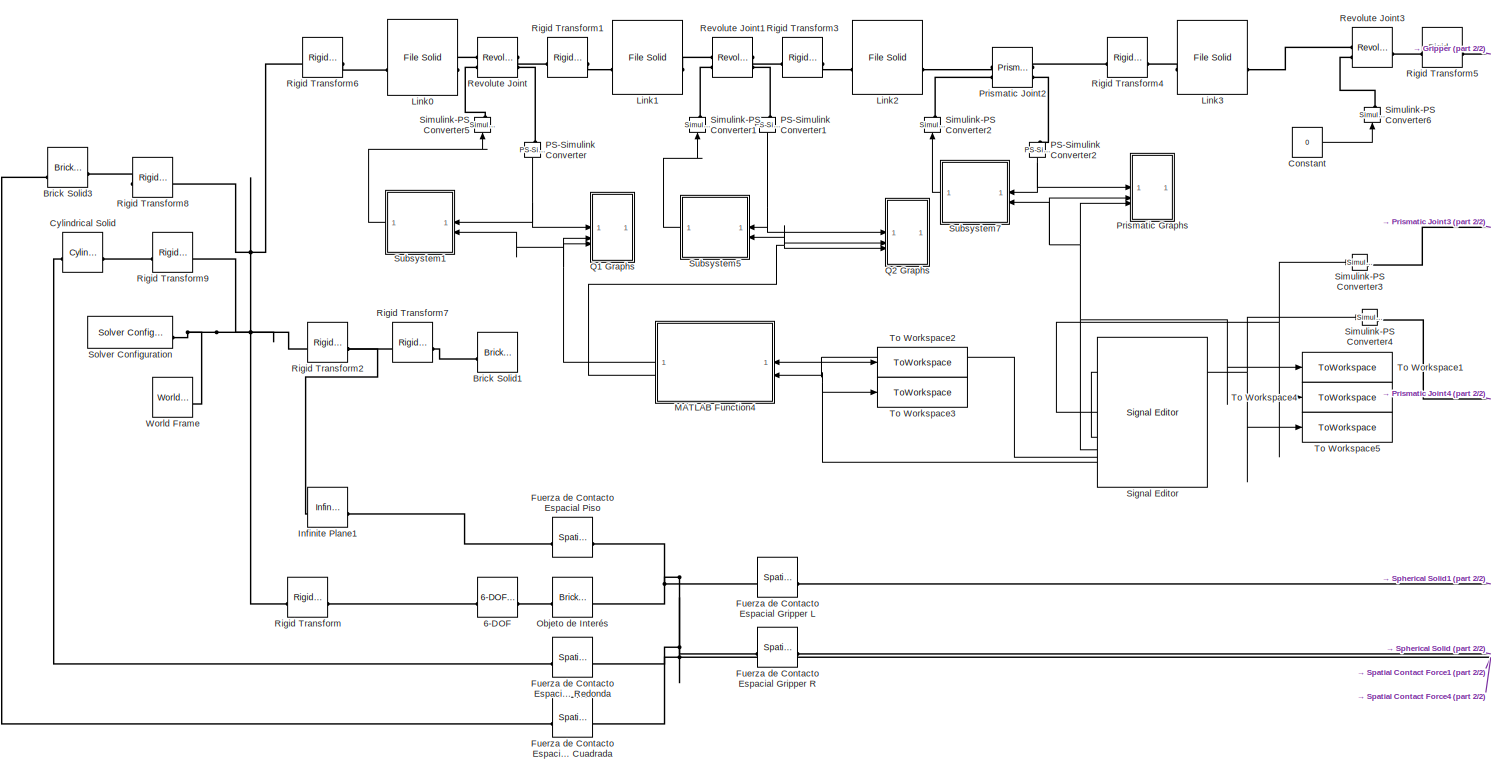
[diagram: root canvas - part 1/2, center side, full height]
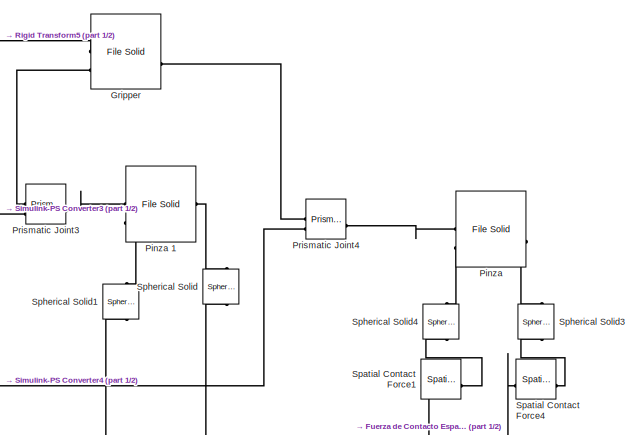
[diagram: root canvas - part 2/2, top right region]
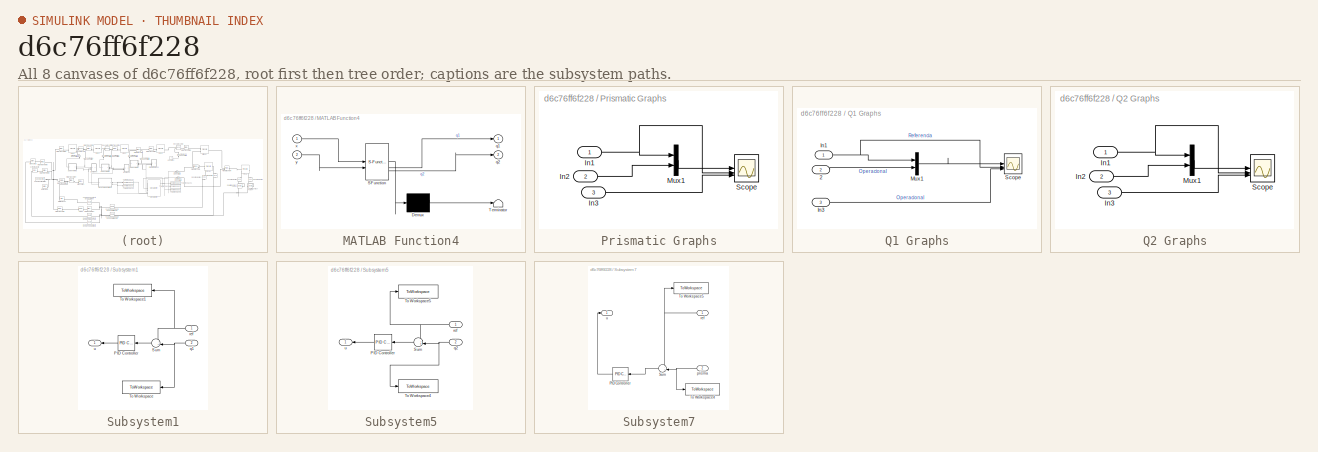
[diagram: thumbnail index - all 8 canvases of the model, root first then tree order]
MODEL slx_d6c76ff6f228
KIND model
CONFIG AbsTol = auto
CONFIG EnableMultiTasking = off
CONFIG FixedStep = auto
CONFIG MaxStep = auto
CONFIG MinStep = auto
CONFIG RelTol = 1e-3
CONFIG SampleTimeConstraint = Unconstrained
CONFIG SolverName = VariableStepAuto
CONFIG StartTime = 0.0
CONFIG StopTime = 35
BLOCK [Reference] 6-DOF  REF=sm_lib/Joints/6-DOF Joint
  SourceBlock = sm_lib/Joints/6-DOF Joint
  SourceType = 6-DOF Joint
BLOCK [Reference] Brick Solid1  REF=sm_lib/Body Elements/Brick Solid
  SourceBlock = sm_lib/Body Elements/Brick Solid
  SourceType = Brick Solid
BLOCK [Reference] Brick Solid3  REF=sm_lib/Body Elements/Brick Solid
  NameLocation = top
  SourceBlock = sm_lib/Body Elements/Brick Solid
  SourceType = Brick Solid
BLOCK [Constant] Constant
  Value = 0
BLOCK [Reference] Cylindrical Solid  REF=sm_lib/Body Elements/Cylindrical Solid
  SourceBlock = sm_lib/Body Elements/Cylindrical Solid
  SourceType = Cylindrical Solid
BLOCK [Reference] Fuerza de Contacto Espacial Base Cuadrada  REF=sm_lib/Forces and
Torques/Spatial
Contact Force
  SourceBlock = sm_lib/Forces and\nTorques/Spatial\nContact Force
  SourceType = Spatial\nContact Force
BLOCK [Reference] Fuerza de Contacto Espacial Base Redonda   REF=sm_lib/Forces and
Torques/Spatial
Contact Force
  SourceBlock = sm_lib/Forces and\nTorques/Spatial\nContact Force
  SourceType = Spatial\nContact Force
BLOCK [Reference] Fuerza de Contacto Espacial Gripper L  REF=sm_lib/Forces and
Torques/Spatial
Contact Force
  NameLocation = top
  SourceBlock = sm_lib/Forces and\nTorques/Spatial\nContact Force
  SourceType = Spatial\nContact Force
BLOCK [Reference] Fuerza de Contacto Espacial Gripper R  REF=sm_lib/Forces and
Torques/Spatial
Contact Force
  NameLocation = top
  SourceBlock = sm_lib/Forces and\nTorques/Spatial\nContact Force
  SourceType = Spatial\nContact Force
BLOCK [Reference] Fuerza de Contacto Espacial Piso  REF=sm_lib/Forces and
Torques/Spatial
Contact Force
  SourceBlock = sm_lib/Forces and\nTorques/Spatial\nContact Force
  SourceType = Spatial\nContact Force
BLOCK [Reference] Gripper  REF=sm_lib/Body Elements/File Solid
  SourceBlock = sm_lib/Body Elements/File Solid
  SourceType = File Solid
BLOCK [Reference] Infinite Plane1  REF=sm_lib/Curves and Surfaces/Infinite Plane
  SourceBlock = sm_lib/Curves and Surfaces/Infinite Plane
  SourceType = Infinite Plane
BLOCK [Reference] Link0  REF=sm_lib/Body Elements/File Solid
  SourceBlock = sm_lib/Body Elements/File Solid
  SourceType = File Solid
BLOCK [Reference] Link1  REF=sm_lib/Body Elements/File Solid
  SourceBlock = sm_lib/Body Elements/File Solid
  SourceType = File Solid
BLOCK [Reference] Link2  REF=sm_lib/Body Elements/File Solid
  SourceBlock = sm_lib/Body Elements/File Solid
  SourceType = File Solid
BLOCK [Reference] Link3  REF=sm_lib/Body Elements/File Solid
  SourceBlock = sm_lib/Body Elements/File Solid
  SourceType = File Solid
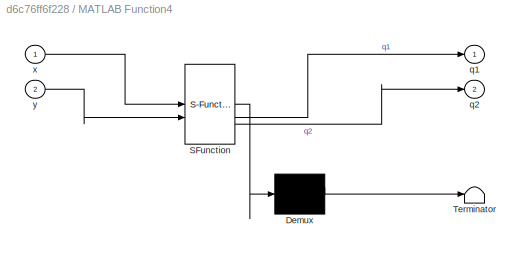
BLOCK [SubSystem] MATLAB Function4
  ErrorFcn = Stateflow.Translate.translate
  NameLocation = top
  PermitHierarchicalResolution = ExplicitOnly
  SFBlockType = MATLAB Function
  TreatAsAtomicUnit = on
BLOCK [Demux] MATLAB Function4/ Demux 
  Outputs = 1
BLOCK [S-Function] MATLAB Function4/ SFunction 
  EnableBusSupport = off
  FunctionName = sf_sfun
  PortCounts = [2 3]
  SFcnIsStateOwnerBlock = off
  SFunctionDeploymentMode = off
  Tag = Stateflow S-Function 4
BLOCK [Terminator] MATLAB Function4/ Terminator 
BLOCK [Outport] MATLAB Function4/q1
BLOCK [Outport] MATLAB Function4/q2
  Port = 2
BLOCK [Inport] MATLAB Function4/x
BLOCK [Inport] MATLAB Function4/y
  Port = 2
BLOCK [Reference] Objeto de Interés  REF=sm_lib/Body Elements/Brick Solid
  SourceBlock = sm_lib/Body Elements/Brick Solid
  SourceType = Brick Solid
BLOCK [Reference] PS-Simulink Converter  REF=nesl_utility/PS-Simulink
Converter
  NameLocation = left
  SourceBlock = nesl_utility/PS-Simulink\nConverter
  SourceType = PS-Simulink\nConverter
BLOCK [Reference] PS-Simulink Converter1  REF=nesl_utility/PS-Simulink
Converter
  NameLocation = left
  SourceBlock = nesl_utility/PS-Simulink\nConverter
  SourceType = PS-Simulink\nConverter
BLOCK [Reference] PS-Simulink Converter2  REF=nesl_utility/PS-Simulink
Converter
  NameLocation = left
  SourceBlock = nesl_utility/PS-Simulink\nConverter
  SourceType = PS-Simulink\nConverter
BLOCK [Reference] Pinza   REF=sm_lib/Body Elements/File Solid
  SourceBlock = sm_lib/Body Elements/File Solid
  SourceType = File Solid
BLOCK [Reference] Pinza 1  REF=sm_lib/Body Elements/File Solid
  SourceBlock = sm_lib/Body Elements/File Solid
  SourceType = File Solid
BLOCK [SubSystem] Prismatic Graphs
BLOCK [Inport] Prismatic Graphs/In1
BLOCK [Inport] Prismatic Graphs/In2
  Port = 2
BLOCK [Inport] Prismatic Graphs/In3
  Port = 3
BLOCK [Mux] Prismatic Graphs/Mux1
  DisplayOption = bar
  Inputs = 2
BLOCK [Scope] Prismatic Graphs/Scope
  ActiveDisplayYMaximum = 0.11755437641233973
  ActiveDisplayYMinimum = -0.057989387711057591
  DataLoggingVariableName = ScopeData1
  DisplayFullPath = on
  Floating = off
  GraphicalSettings = {"Style":{"BackgroundColor":[0.12941176470588237,0.12941176470588237,0.12941176470588237],"AxesColor":[0.07058823529411765,0.07058823529411765,0.07058823529411765],"LabelsColor":[0.8509803921568627,0.8509803921568627,0.8509803921568627],"PreserveColors":false,"Visible":[true,true,true,true],"LineStyle":["-","-","-","-"],"LineWidth":[1.5,1.5,1.5,1.5],"BarWidth":[0.9,0.9,0.9,0.9],"LineColor":["auto"...<+2889ch>
  LayoutDimensionsString = [3,1]
  MultipleDisplayCache = [{"MaxYLimMag":0.11755437641233973,"MaxYLimReal":0.11755437641233973,"MinYLimMag":0,"MinYLimReal":-0.057989387711057591,"PlotAsMagnitudePhase":false,"ShowGrid":true,"ShowLegend":false,"Title":"%<SignalLabel>","YLabel":""},{"MaxYLimMag":0.11755437641233973,"MaxYLimReal":0.11755437641233973,"MinYLimMag":0,"MinYLimReal":-0.057989387711057591,"PlotAsMagnitudePhase":false,"ShowGrid":true,"ShowLegend":f...<+230ch>
  NumInputPorts = 3
  OpenAtSimulationStart = on
  ScopeFrameLocation = window
  Visible = on
  WasSavedAsWebScope = on
  WindowPosition = [5.000000,48.000000,499.000000,233.000000,]
BLOCK [Reference] Prismatic Joint2  REF=sm_lib/Joints/Prismatic
Joint
  SourceBlock = sm_lib/Joints/Prismatic\nJoint
  SourceType = Prismatic\nJoint
BLOCK [Reference] Prismatic Joint3  REF=sm_lib/Joints/Prismatic
Joint
  SourceBlock = sm_lib/Joints/Prismatic\nJoint
  SourceType = Prismatic\nJoint
BLOCK [Reference] Prismatic Joint4  REF=sm_lib/Joints/Prismatic
Joint
  SourceBlock = sm_lib/Joints/Prismatic\nJoint
  SourceType = Prismatic\nJoint
BLOCK [SubSystem] Q1 Graphs
BLOCK [Inport] Q1 Graphs/2
  Port = 2
BLOCK [Inport] Q1 Graphs/In1
BLOCK [Inport] Q1 Graphs/In3
  Port = 3
BLOCK [Mux] Q1 Graphs/Mux1
  DisplayOption = bar
  Inputs = 2
BLOCK [Scope] Q1 Graphs/Scope
  ActiveDisplayYMaximum = 1.1953208461444214
  ActiveDisplayYMinimum = -0.61811223602463272
  AxesScaling = Auto
  DataLoggingVariableName = ScopeData5
  DisplayFullPath = on
  Floating = off
  GraphicalSettings = {"Style":{"BackgroundColor":[0.12941176470588237,0.12941176470588237,0.12941176470588237],"AxesColor":[0.07058823529411765,0.07058823529411765,0.07058823529411765],"LabelsColor":[0.8509803921568627,0.8509803921568627,0.8509803921568627],"PreserveColors":false,"Visible":[true,true,true,true],"LineStyle":["-","-","-","-"],"LineWidth":[1.5,1.5,1.5,1.5],"BarWidth":[0.9,0.9,0.9,0.9],"LineColor":["auto"...<+3002ch>
  LayoutDimensionsString = [3,1]
  MultipleDisplayCache = [{"MaxYLimMag":1.1953208461444214,"MaxYLimReal":1.1953208461444214,"MinYLimMag":0,"MinYLimReal":-0.61811223602463272,"PlotAsMagnitudePhase":false,"ShowGrid":true,"ShowLegend":false,"Title":"%<SignalLabel>","YLabel":""},{"MaxYLimMag":1.1953208461444214,"MaxYLimReal":1.1953208461444214,"MinYLimMag":0,"MinYLimReal":-0.61811223602463272,"PlotAsMagnitudePhase":false,"ShowGrid":true,"ShowLegend":false,"...<+255ch>
  NumInputPorts = 3
  OpenAtSimulationStart = on
  ScopeFrameLocation = window
  Visible = on
  WasSavedAsWebScope = on
  WindowPosition = [-5.000000,568.000000,498.000000,263.000000,]
BLOCK [SubSystem] Q2 Graphs
BLOCK [Inport] Q2 Graphs/In1
BLOCK [Inport] Q2 Graphs/In2
  Port = 2
BLOCK [Inport] Q2 Graphs/In3
  Port = 3
BLOCK [Mux] Q2 Graphs/Mux1
  DisplayOption = bar
  Inputs = 2
BLOCK [Scope] Q2 Graphs/Scope
  ActiveDisplayYMaximum = 2.1657392625071732
  ActiveDisplayYMinimum = -0.24063840487170007
  DisplayFullPath = on
  Floating = off
  GraphicalSettings = {"Style":{"BackgroundColor":[0.12941176470588237,0.12941176470588237,0.12941176470588237],"AxesColor":[0.07058823529411765,0.07058823529411765,0.07058823529411765],"LabelsColor":[0.8509803921568627,0.8509803921568627,0.8509803921568627],"PreserveColors":false,"Visible":[true,true,true,true],"LineStyle":["-","-","-","-"],"LineWidth":[1.5,1.5,1.5,1.5],"BarWidth":[0.9,0.9,0.9,0.9],"LineColor":["auto"...<+2946ch>
  LayoutDimensionsString = [3,1]
  MultipleDisplayCache = [{"MaxYLimMag":2.1657392625071732,"MaxYLimReal":2.1657392625071732,"MinYLimMag":0,"MinYLimReal":-0.24063840487170007,"PlotAsMagnitudePhase":false,"ShowGrid":true,"ShowLegend":false,"Title":"%<SignalLabel>","YLabel":""},{"MaxYLimMag":2.1654513480078244,"MaxYLimReal":2.1654513480078244,"MinYLimMag":0,"MinYLimReal":-0.24060641437177244,"PlotAsMagnitudePhase":false,"ShowGrid":true,"ShowLegend":false,"...<+255ch>
  NumInputPorts = 3
  OpenAtSimulationStart = on
  ScopeFrameLocation = window
  Visible = on
  WasSavedAsWebScope = on
  WindowPosition = [-6.000000,306.000000,503.000000,235.000000,]
BLOCK [Reference] Revolute Joint  REF=sm_lib/Joints/Revolute Joint
  SourceBlock = sm_lib/Joints/Revolute Joint
  SourceType = Revolute Joint
BLOCK [Reference] Revolute Joint1  REF=sm_lib/Joints/Revolute Joint
  SourceBlock = sm_lib/Joints/Revolute Joint
  SourceType = Revolute Joint
BLOCK [Reference] Revolute Joint3  REF=sm_lib/Joints/Revolute Joint
  SourceBlock = sm_lib/Joints/Revolute Joint
  SourceType = Revolute Joint
BLOCK [Reference] Rigid Transform  REF=sm_lib/Frames and
Transforms/Rigid
Transform
  SourceBlock = sm_lib/Frames and\nTransforms/Rigid\nTransform
  SourceType = Rigid\nTransform
BLOCK [Reference] Rigid Transform1  REF=sm_lib/Frames and
Transforms/Rigid
Transform
  SourceBlock = sm_lib/Frames and\nTransforms/Rigid\nTransform
  SourceType = Rigid\nTransform
BLOCK [Reference] Rigid Transform2  REF=sm_lib/Frames and
Transforms/Rigid
Transform
  SourceBlock = sm_lib/Frames and\nTransforms/Rigid\nTransform
  SourceType = Rigid\nTransform
BLOCK [Reference] Rigid Transform3  REF=sm_lib/Frames and
Transforms/Rigid
Transform
  SourceBlock = sm_lib/Frames and\nTransforms/Rigid\nTransform
  SourceType = Rigid\nTransform
BLOCK [Reference] Rigid Transform4  REF=sm_lib/Frames and
Transforms/Rigid
Transform
  SourceBlock = sm_lib/Frames and\nTransforms/Rigid\nTransform
  SourceType = Rigid\nTransform
BLOCK [Reference] Rigid Transform5  REF=sm_lib/Frames and
Transforms/Rigid
Transform
  SourceBlock = sm_lib/Frames and\nTransforms/Rigid\nTransform
  SourceType = Rigid\nTransform
BLOCK [Reference] Rigid Transform6  REF=sm_lib/Frames and
Transforms/Rigid
Transform
  SourceBlock = sm_lib/Frames and\nTransforms/Rigid\nTransform
  SourceType = Rigid\nTransform
BLOCK [Reference] Rigid Transform7  REF=sm_lib/Frames and
Transforms/Rigid
Transform
  SourceBlock = sm_lib/Frames and\nTransforms/Rigid\nTransform
  SourceType = Rigid\nTransform
BLOCK [Reference] Rigid Transform8  REF=sm_lib/Frames and
Transforms/Rigid
Transform
  NameLocation = top
  SourceBlock = sm_lib/Frames and\nTransforms/Rigid\nTransform
  SourceType = Rigid\nTransform
BLOCK [Reference] Rigid Transform9  REF=sm_lib/Frames and
Transforms/Rigid
Transform
  NameLocation = top
  SourceBlock = sm_lib/Frames and\nTransforms/Rigid\nTransform
  SourceType = Rigid\nTransform
BLOCK [Reference] Signal Editor  REF=SignalEditorBlockLib/Signal Editor
  LibrarySourceBlock = simulink/Sources/Signal Editor
  NameLocation = top
  SourceBlock = SignalEditorBlockLib/Signal Editor
  SourceType = SignalEditor
  UserDataPersistent = on
BLOCK [Reference] Simulink-PS Converter1  REF=nesl_utility/Simulink-PS
Converter
  NameLocation = right
  SourceBlock = nesl_utility/Simulink-PS\nConverter
  SourceType = Simulink-PS\nConverter
BLOCK [Reference] Simulink-PS Converter2  REF=nesl_utility/Simulink-PS
Converter
  NameLocation = right
  SourceBlock = nesl_utility/Simulink-PS\nConverter
  SourceType = Simulink-PS\nConverter
BLOCK [Reference] Simulink-PS Converter3  REF=nesl_utility/Simulink-PS
Converter
  SourceBlock = nesl_utility/Simulink-PS\nConverter
  SourceType = Simulink-PS\nConverter
BLOCK [Reference] Simulink-PS Converter4  REF=nesl_utility/Simulink-PS
Converter
  SourceBlock = nesl_utility/Simulink-PS\nConverter
  SourceType = Simulink-PS\nConverter
BLOCK [Reference] Simulink-PS Converter5  REF=nesl_utility/Simulink-PS
Converter
  NameLocation = right
  SourceBlock = nesl_utility/Simulink-PS\nConverter
  SourceType = Simulink-PS\nConverter
BLOCK [Reference] Simulink-PS Converter6  REF=nesl_utility/Simulink-PS
Converter
  NameLocation = right
  SourceBlock = nesl_utility/Simulink-PS\nConverter
  SourceType = Simulink-PS\nConverter
BLOCK [Reference] Solver Configuration  REF=nesl_utility/Solver
Configuration
  SourceBlock = nesl_utility/Solver\nConfiguration
  SourceType = Solver\nConfiguration
BLOCK [Reference] Spatial Contact Force1  REF=sm_lib/Forces and
Torques/Spatial
Contact Force
  NameLocation = top
  SourceBlock = sm_lib/Forces and\nTorques/Spatial\nContact Force
  SourceType = Spatial\nContact Force
BLOCK [Reference] Spatial Contact Force4  REF=sm_lib/Forces and
Torques/Spatial
Contact Force
  NameLocation = top
  SourceBlock = sm_lib/Forces and\nTorques/Spatial\nContact Force
  SourceType = Spatial\nContact Force
BLOCK [Reference] Spherical Solid  REF=sm_lib/Body Elements/Spherical Solid
  NameLocation = right
  SourceBlock = sm_lib/Body Elements/Spherical Solid
  SourceType = Spherical Solid
BLOCK [Reference] Spherical Solid1  REF=sm_lib/Body Elements/Spherical Solid
  NameLocation = right
  SourceBlock = sm_lib/Body Elements/Spherical Solid
  SourceType = Spherical Solid
BLOCK [Reference] Spherical Solid3  REF=sm_lib/Body Elements/Spherical Solid
  NameLocation = right
  SourceBlock = sm_lib/Body Elements/Spherical Solid
  SourceType = Spherical Solid
BLOCK [Reference] Spherical Solid4  REF=sm_lib/Body Elements/Spherical Solid
  NameLocation = right
  SourceBlock = sm_lib/Body Elements/Spherical Solid
  SourceType = Spherical Solid
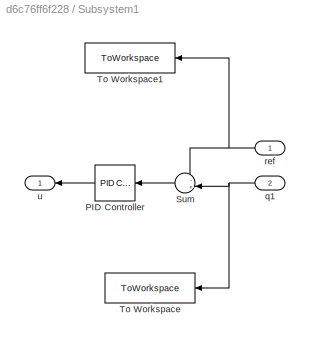
BLOCK [SubSystem] Subsystem1
  NameLocation = top
BLOCK [Reference] Subsystem1/PID Controller  REF=slpidlib/PID Controller
  LibrarySourceBlock = simulink/Continuous/PID Controller
  NameLocation = top
  SourceBlock = slpidlib/PID Controller
  SourceType = PID 1dof
BLOCK [Sum] Subsystem1/Sum
  Inputs = -+|
  NameLocation = top
BLOCK [ToWorkspace] Subsystem1/To Workspace
  FixptAsFi = on
  MaxDataPoints = inf
  NameLocation = top
  SampleTime = -1
  SaveFormat = Timeseries
  VariableName = q1
BLOCK [ToWorkspace] Subsystem1/To Workspace1
  FixptAsFi = on
  MaxDataPoints = inf
  NameLocation = top
  SampleTime = -1
  SaveFormat = Timeseries
  VariableName = q1ref
BLOCK [Inport] Subsystem1/q1
  NameLocation = top
  Port = 2
BLOCK [Inport] Subsystem1/ref
  NameLocation = top
BLOCK [Outport] Subsystem1/u
  NameLocation = top
BLOCK [SubSystem] Subsystem5
  NameLocation = top
BLOCK [Reference] Subsystem5/PID Controller  REF=slpidlib/PID Controller
  LibrarySourceBlock = simulink/Continuous/PID Controller
  NameLocation = top
  SourceBlock = slpidlib/PID Controller
  SourceType = PID 1dof
BLOCK [Sum] Subsystem5/Sum
  Inputs = -+|
  NameLocation = top
BLOCK [ToWorkspace] Subsystem5/To Workspace4
  FixptAsFi = on
  MaxDataPoints = inf
  SampleTime = -1
  SaveFormat = Timeseries
  VariableName = q2
BLOCK [ToWorkspace] Subsystem5/To Workspace5
  FixptAsFi = on
  MaxDataPoints = inf
  SampleTime = -1
  SaveFormat = Timeseries
  VariableName = q2pid
BLOCK [Inport] Subsystem5/q2
  NameLocation = top
  Port = 2
BLOCK [Inport] Subsystem5/ref
  NameLocation = top
BLOCK [Outport] Subsystem5/u
  NameLocation = top
BLOCK [SubSystem] Subsystem7
  NameLocation = top
BLOCK [Reference] Subsystem7/PID Controller  REF=slpidlib/PID Controller
  LibrarySourceBlock = simulink/Continuous/PID Controller
  NameLocation = top
  SourceBlock = slpidlib/PID Controller
  SourceType = PID 1dof
BLOCK [Sum] Subsystem7/Sum
  Inputs = -+|
  NameLocation = top
BLOCK [ToWorkspace] Subsystem7/To Workspace4
  FixptAsFi = on
  MaxDataPoints = inf
  SampleTime = -1
  SaveFormat = Timeseries
  VariableName = prisma
BLOCK [ToWorkspace] Subsystem7/To Workspace5
  FixptAsFi = on
  MaxDataPoints = inf
  SampleTime = -1
  SaveFormat = Timeseries
  VariableName = prismapid
BLOCK [Inport] Subsystem7/prisma
  NameLocation = top
  Port = 2
BLOCK [Inport] Subsystem7/ref
  NameLocation = top
BLOCK [Outport] Subsystem7/u
BLOCK [ToWorkspace] To Workspace1
  FixptAsFi = on
  MaxDataPoints = inf
  SampleTime = -1
  SaveFormat = Timeseries
  VariableName = prismaOp
BLOCK [ToWorkspace] To Workspace2
  FixptAsFi = on
  MaxDataPoints = inf
  SampleTime = -1
  SaveFormat = Timeseries
  VariableName = x
BLOCK [ToWorkspace] To Workspace3
  FixptAsFi = on
  MaxDataPoints = inf
  SampleTime = -1
  SaveFormat = Timeseries
  VariableName = y
BLOCK [ToWorkspace] To Workspace4
  FixptAsFi = on
  MaxDataPoints = inf
  SampleTime = -1
  SaveFormat = Timeseries
  VariableName = gripperL
BLOCK [ToWorkspace] To Workspace5
  FixptAsFi = on
  MaxDataPoints = inf
  SampleTime = -1
  SaveFormat = Timeseries
  VariableName = gripperR
BLOCK [Reference] World Frame  REF=sm_lib/Frames and
Transforms/World Frame
  SourceBlock = sm_lib/Frames and\nTransforms/World Frame
  SourceType = World Frame
LINE Constant:1 -> Simulink-PS Converter6:1
NET MATLAB Function4:1 -> Q1 Graphs:2, Q1 Graphs:3, Subsystem1:2
NET MATLAB Function4:2 -> Q2 Graphs:2, Q2 Graphs:3, Subsystem5:2
NET PS-Simulink Converter1:1 -> Q2 Graphs:1, Subsystem5:1
NET PS-Simulink Converter2:1 -> Prismatic Graphs:1, Subsystem7:1
NET PS-Simulink Converter:1 -> Q1 Graphs:1, Subsystem1:1
NET Prismatic Graphs/In1:1 -> Prismatic Graphs/Mux1:1, Prismatic Graphs/Scope:2
LINE Prismatic Graphs/In2:1 -> Prismatic Graphs/Mux1:2
LINE Prismatic Graphs/In3:1 -> Prismatic Graphs/Scope:3
LINE Prismatic Graphs/Mux1:1 -> Prismatic Graphs/Scope:1
LINE Q1 Graphs/2:1 -> Q1 Graphs/Mux1:2
NET Q1 Graphs/In1:1 -> Q1 Graphs/Mux1:1, Q1 Graphs/Scope:2
LINE Q1 Graphs/In3:1 -> Q1 Graphs/Scope:3
LINE Q1 Graphs/Mux1:1 -> Q1 Graphs/Scope:1
NET Q2 Graphs/In1:1 -> Q2 Graphs/Mux1:1, Q2 Graphs/Scope:2
LINE Q2 Graphs/In2:1 -> Q2 Graphs/Mux1:2
LINE Q2 Graphs/In3:1 -> Q2 Graphs/Scope:3
LINE Q2 Graphs/Mux1:1 -> Q2 Graphs/Scope:1
NET Signal Editor:1 -> Simulink-PS Converter3:1, To Workspace4:1
NET Signal Editor:2 -> Simulink-PS Converter4:1, To Workspace5:1
NET Signal Editor:3 -> Prismatic Graphs:2, Prismatic Graphs:3, Subsystem7:2, To Workspace1:1
NET Signal Editor:4 -> MATLAB Function4:1, To Workspace2:1
NET Signal Editor:5 -> MATLAB Function4:2, To Workspace3:1
LINE Subsystem1/PID Controller:1 -> Subsystem1/u:1
LINE Subsystem1/Sum:1 -> Subsystem1/PID Controller:1
NET Subsystem1/q1:1 -> Subsystem1/Sum:2, Subsystem1/To Workspace:1
NET Subsystem1/ref:1 -> Subsystem1/Sum:1, Subsystem1/To Workspace1:1
LINE Subsystem1:1 -> Simulink-PS Converter5:1
LINE Subsystem5/PID Controller:1 -> Subsystem5/u:1
LINE Subsystem5/Sum:1 -> Subsystem5/PID Controller:1
NET Subsystem5/q2:1 -> Subsystem5/Sum:2, Subsystem5/To Workspace4:1
NET Subsystem5/ref:1 -> Subsystem5/Sum:1, Subsystem5/To Workspace5:1
LINE Subsystem5:1 -> Simulink-PS Converter1:1
LINE Subsystem7/PID Controller:1 -> Subsystem7/u:1
LINE Subsystem7/Sum:1 -> Subsystem7/PID Controller:1
NET Subsystem7/prisma:1 -> Subsystem7/Sum:2, Subsystem7/To Workspace4:1
NET Subsystem7/ref:1 -> Subsystem7/Sum:1, Subsystem7/To Workspace5:1
LINE Subsystem7:1 -> Simulink-PS Converter2:1
PLINE 6-DOF:LConn1 -- Rigid Transform:RConn1
PLINE 6-DOF:RConn1 -- Objeto de Interés:RConn1
PLINE Brick Solid1:RConn1 -- Rigid Transform7:RConn1
PLINE Brick Solid3:LConn2 -- Fuerza de Contacto Espacial Base Cuadrada:LConn1
PLINE Brick Solid3:RConn1 -- Rigid Transform8:RConn1
PLINE Cylindrical Solid:LConn1 -- Fuerza de Contacto Espacial Base Redonda :LConn1
PLINE Cylindrical Solid:RConn1 -- Rigid Transform9:RConn1
PNET net1: Fuerza de Contacto Espacial Base Cuadrada:RConn1 -- Fuerza de Contacto Espacial Base Redonda :RConn1 -- Fuerza de Contacto Espacial Gripper L:RConn1 -- Fuerza de Contacto Espacial Gripper R:RConn1 -- Fuerza de Contacto Espacial Piso:RConn1 -- Objeto de Interés:LConn1 -- Spatial Contact Force1:RConn1 -- Spatial Contact Force4:RConn1
PLINE Fuerza de Contacto Espacial Gripper L:LConn1 -- Spherical Solid1:LConn1
PLINE Fuerza de Contacto Espacial Gripper R:LConn1 -- Spherical Solid:LConn1
PLINE Fuerza de Contacto Espacial Piso:LConn1 -- Infinite Plane1:RConn1
PLINE Gripper:LConn1 -- Rigid Transform5:RConn1
PLINE Gripper:LConn2 -- Prismatic Joint3:LConn1
PLINE Gripper:RConn1 -- Prismatic Joint4:LConn1
PNET net2: Infinite Plane1:LConn1 -- Rigid Transform2:RConn1 -- Rigid Transform7:LConn1
PLINE Link0:LConn1 -- Revolute Joint:LConn1
PLINE Link0:RConn1 -- Rigid Transform6:RConn1
PLINE Link1:LConn1 -- Rigid Transform1:RConn1
PLINE Link1:RConn1 -- Revolute Joint1:LConn1
PLINE Link2:LConn1 -- Rigid Transform3:RConn1
PLINE Link2:RConn1 -- Prismatic Joint2:LConn1
PLINE Link3:LConn1 -- Rigid Transform4:RConn1
PLINE Link3:RConn1 -- Revolute Joint3:LConn1
PLINE PS-Simulink Converter1:LConn1 -- Revolute Joint1:RConn2
PLINE PS-Simulink Converter2:LConn1 -- Prismatic Joint2:RConn2
PLINE PS-Simulink Converter:LConn1 -- Revolute Joint:RConn2
PLINE Pinza 1:LConn1 -- Prismatic Joint3:RConn1
PLINE Pinza 1:LConn2 -- Spherical Solid1:RConn1
PLINE Pinza 1:RConn1 -- Spherical Solid:RConn1
PLINE Pinza :LConn1 -- Prismatic Joint4:RConn1
PLINE Pinza :LConn2 -- Spherical Solid4:RConn1
PLINE Pinza :RConn1 -- Spherical Solid3:RConn1
PLINE Prismatic Joint2:LConn2 -- Simulink-PS Converter2:RConn1
PLINE Prismatic Joint2:RConn1 -- Rigid Transform4:LConn1
PLINE Prismatic Joint3:LConn2 -- Simulink-PS Converter3:RConn1
PLINE Prismatic Joint4:LConn2 -- Simulink-PS Converter4:RConn1
PLINE Revolute Joint1:LConn2 -- Simulink-PS Converter1:RConn1
PLINE Revolute Joint1:RConn1 -- Rigid Transform3:LConn1
PLINE Revolute Joint3:LConn2 -- Simulink-PS Converter6:RConn1
PLINE Revolute Joint3:RConn1 -- Rigid Transform5:LConn1
PLINE Revolute Joint:LConn2 -- Simulink-PS Converter5:RConn1
PLINE Revolute Joint:RConn1 -- Rigid Transform1:LConn1
PNET net3: Rigid Transform2:LConn1 -- Rigid Transform6:LConn1 -- Rigid Transform8:LConn1 -- Rigid Transform9:LConn1 -- Rigid Transform:LConn1 -- Solver Configuration:RConn1 -- World Frame:RConn1
PLINE Spatial Contact Force1:LConn1 -- Spherical Solid4:LConn1
PLINE Spatial Contact Force4:LConn1 -- Spherical Solid3:LConn1
note: NET lines group one-source signal fan-out (src -> all destinations, sorted); 1:1 wires keep LINE; PNET lines group multi-terminal physical nets as a canonical sorted terminal list (undirected conserving connections); 2-terminal nets keep the pairwise PLINE form
CHART MATLAB Function4 states=1 transitions=1
  STATE_LABEL 'eML_blk_kernel()'
  STATE_LABEL 'SCRIPT:\nfunction [q1,q2] = trayectoria(x,y)\nL1 = 0.7;\nL2 = 0.7;\n% q2 \nq2=acos(((x^2+y^2)-(L1^2+L2^2))/(2*L1*L2));\n% q1 \nq1=atan2(x,-y)-atan2((L2*sin(q2)),(L1+L2*cos(q2)));\nend\n'
CHART  states=0 transitions=0
